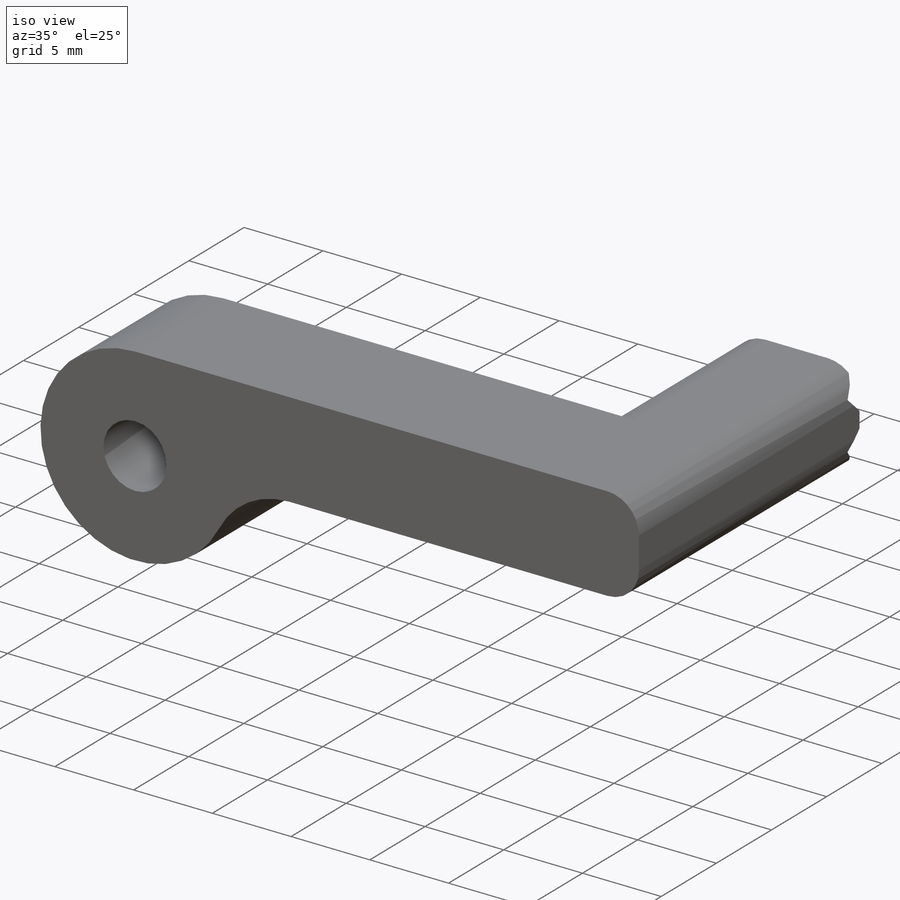
[diagram: iso view]
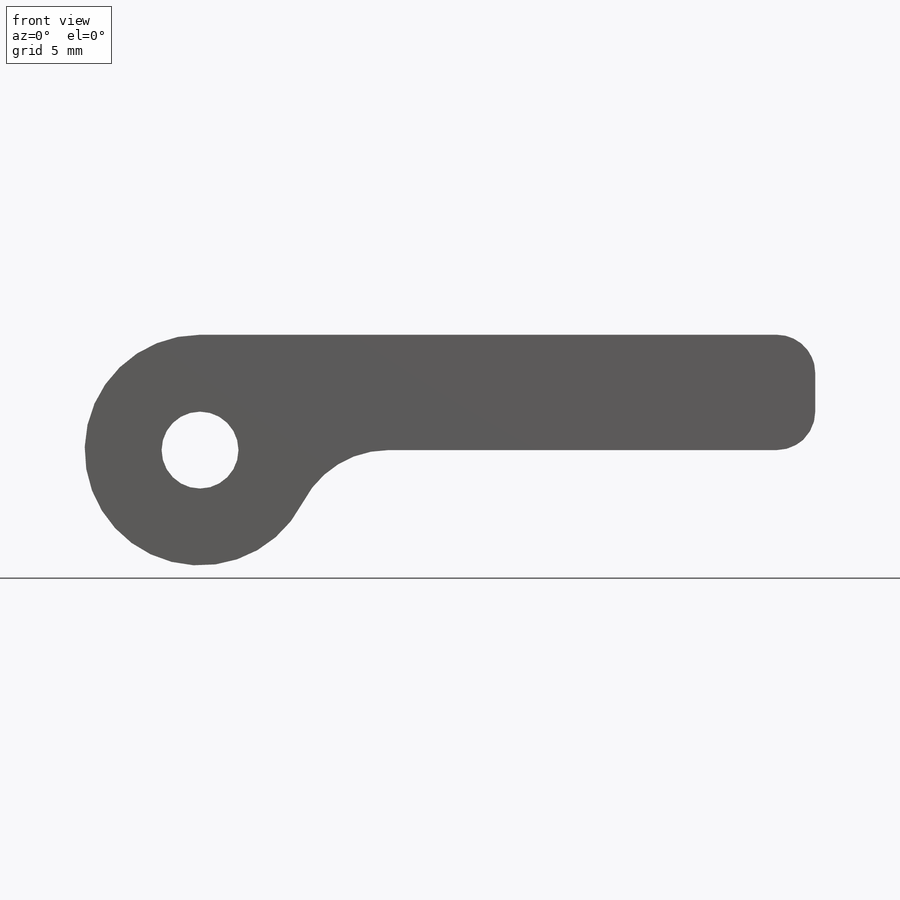
[diagram: front view]
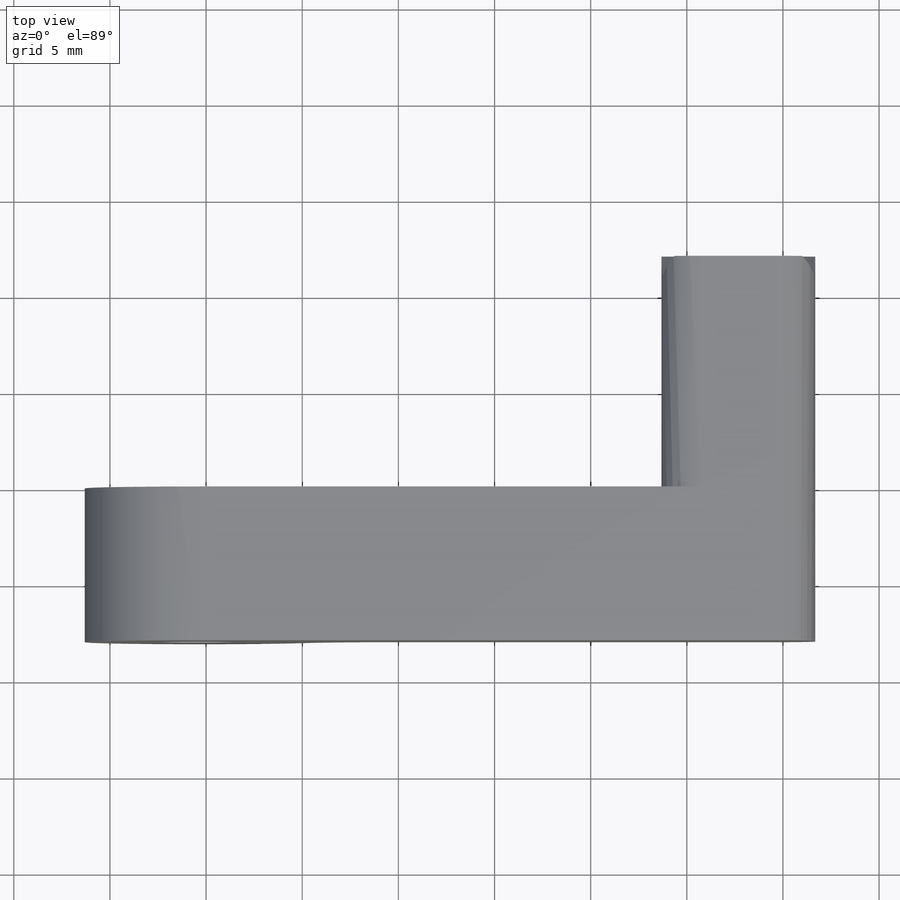
[diagram: top view]
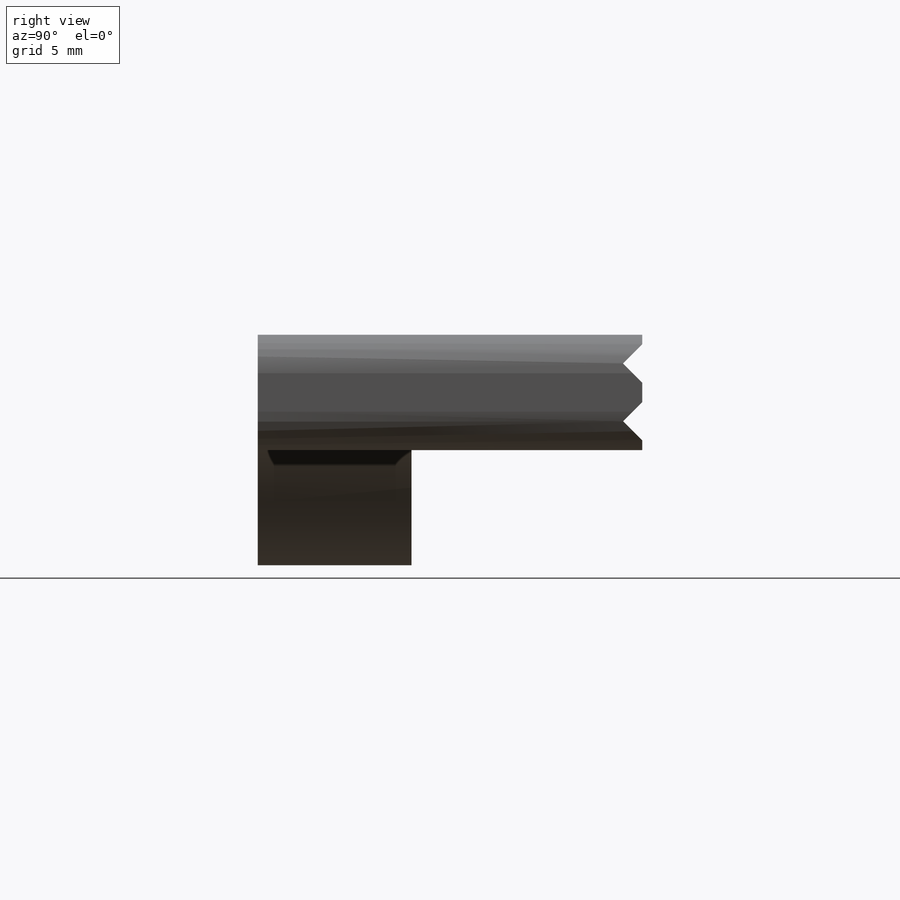
[diagram: right view]
SOLIDWORKS PART (.sldprt)
format: sldprt  version: not decoded by parser v0  size: 196,096 bytes
history: native  units: mm
features: sketch x4, extrude x2, cut_extrude x2, material x1, fillet x1 (+11 scaffold rows collapsed)
feature tree (21):
  scaffold x11  (default folders/planes/origin — collapsed)
  material  "Material <not specified>"
  sketch  "Sketch1"  dims[c1.D1=5.0mm c1.D5=~1.558608mm c2.D1=32.0mm c2.D2=2.0mm c2.D3=8.0mm c2.D4=32.0mm c2.D5=6.0mm c3.D5=~36.181385deg]
  extrude  "Boss-Extrude1"  Depth=8mm
  sketch  "Sketch2"  dims[c1.D1=5.0mm c1.D5=~1.558608mm c2.D1=32.0mm c2.D2=2.0mm c2.D3=8.0mm c2.D4=32.0mm c2.D5=6.0mm c3.D5=~36.181385deg]
  extrude  "Boss-Extrude2"  Depth=12mm
  sketch  "Sketch3"  dims[D1=~2.501232mm]
  cut_extrude  "Cut-Extrude1"  Depth=8mm
  fillet  "Fillet1"  Radius=2mm
  sketch  "Sketch4"
  cut_extrude  "Cut-Extrude2"  Depth=8mm
decode coverage: 8 of 9 modeling features carry decoded parameters
note: ~ marks probable driven/reference dimensions
note: suppression state not decoded; provenance and decode notes live in map.json
